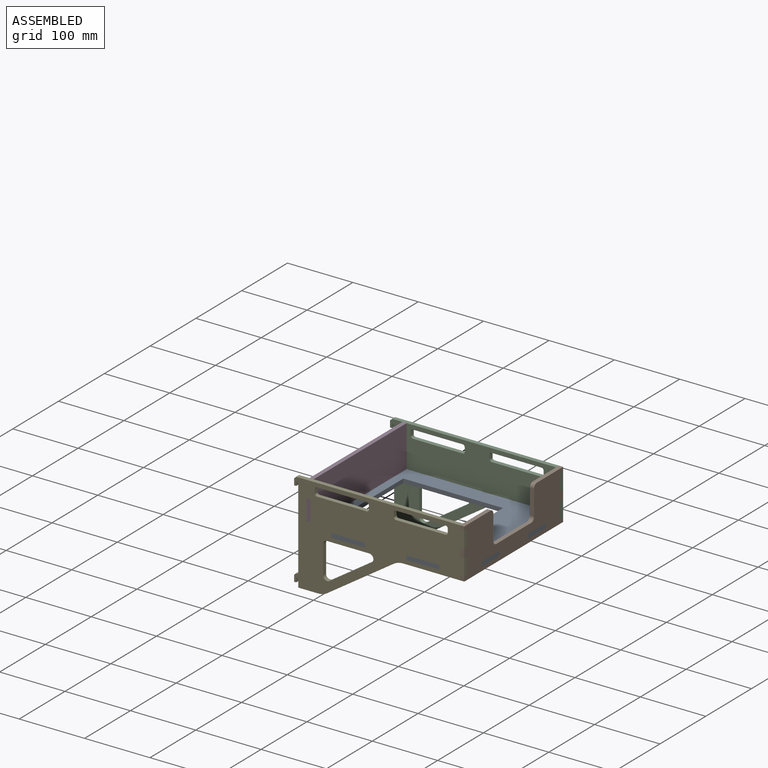
[diagram: assembled view]
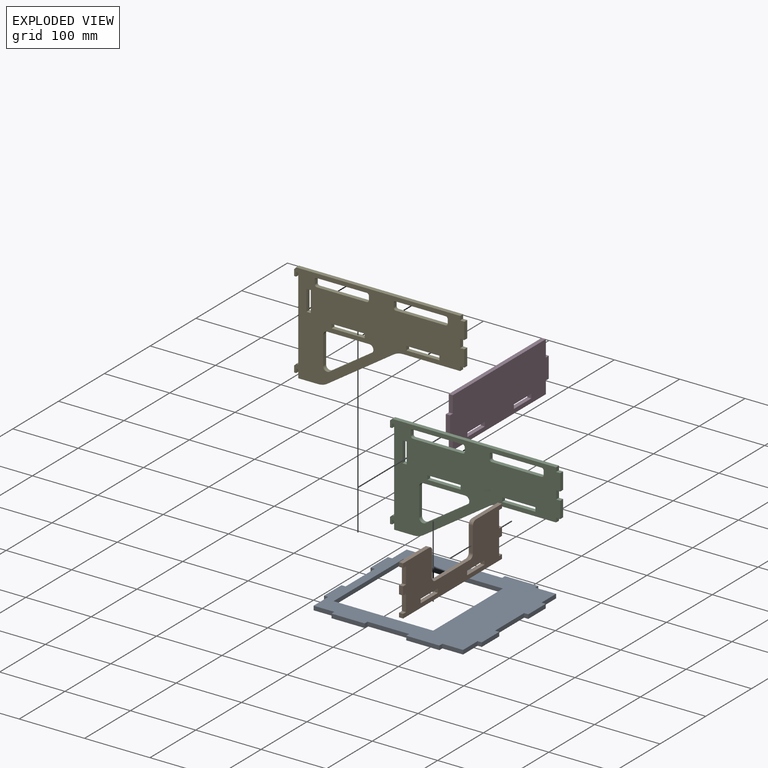
[diagram: exploded view]
GUIDED TOUR — MATED ASSEMBLY (Onshape document b302a320dc80bb2ea36d45a2, AutoMate assembly b302a320dc80bb2ea36d45a2_dad749098878d30b90945c5e_bf404f5cf62ca53e64bdb5ba_default)

This assembly has 5 components, labeled P0..P4 below (a component is one placed occurrence of a part; the same part can appear more than once), held together by 12 mates. A mate is a constraint between two components; its type names the relative motion it leaves free:
  FASTENED — locks the two components together rigidly (no relative motion),
  PARALLEL — keeps the two listed directions parallel,
  PLANAR — leaves sliding in the plane through the listed point (normal = the listed direction) and rotation about that normal free.
Axis/direction vectors are unit vectors and 'through' points are millimeter coordinates, both in the assembly's world frame.

MATES
  1. PARALLEL "Parallel 3": P4 <-> P1, direction (0.000, 0.000, 1.000) through (27.46, -137.47, 80.93) mm
  2. PLANAR "Planar 4": P4 <-> P0, direction (0.000, 0.000, -1.000) through (95.72, -137.47, 17.43) mm
  3. PLANAR "Planar 2": P0 <-> P1, direction (0.000, 0.000, 1.000) through (89.37, -32.70, 17.43) mm
  4. FASTENED "Fastened 3": P3 <-> P0, direction (0.000, -1.000, 0.000) through (-82.08, -64.45, 17.43) mm
  5. PARALLEL "Parallel 2": P1 <-> P4, direction (0.000, 0.000, 1.000) through (156.04, -112.07, 80.93) mm
  6. PARALLEL "Parallel 4": P1 <-> P4, direction (1.000, 0.000, 0.000) through (159.22, -134.30, 61.88) mm
  7. PARALLEL "Parallel 1": P4 <-> P1, direction (1.000, 0.000, 0.000) through (152.87, -137.47, 77.75) mm
  8. FASTENED "Fastened 2": P0 <-> P2, direction (1.000, 0.000, 0.000) through (70.32, 75.25, 17.43) mm
  9. FASTENED "Fastened 1": P1 <-> P0, direction (0.000, -1.000, 0.000) through (159.22, -64.45, 17.43) mm
  10. PLANAR "Planar 5": P0 <-> P4, direction (1.000, 0.000, 0.000) through (121.12, -137.47, 14.25) mm
  11. PLANAR "Planar 3": P4 <-> P0, direction (0.000, 1.000, 0.000) through (13.54, -134.30, 24.76) mm
  12. PLANAR "Planar 1": P0 <-> P1, direction (1.000, 0.000, 0.000) through (159.22, -83.50, 14.25) mm

ASSEMBLY ORDER
  1. P2 — the base component [order verified]
  2. P1 [order verified]
  3. P4 [order verified]
  4. P3 [order verified]
  5. P0 [order verified]
Order-tag legend:
  [order verified] — this step's position reverses a verified removal order: the component was checked to insert without passing through the ones already placed.

Of the 5 components, 3 carry the full construction recipe — the FeatureScript program that regenerates the part's solid from scratch; the rest are supplied as boundary geometry only.
Each toured component is shown spotlighted twice — in the assembled view, then in the exploded view, where a leader line traces a displaced component back to its assembled socket (saturated green if recipe-attached, orange if geometry-only; every other component desaturated gray) — followed by its recipe or geometry summary and the mates that hold it.
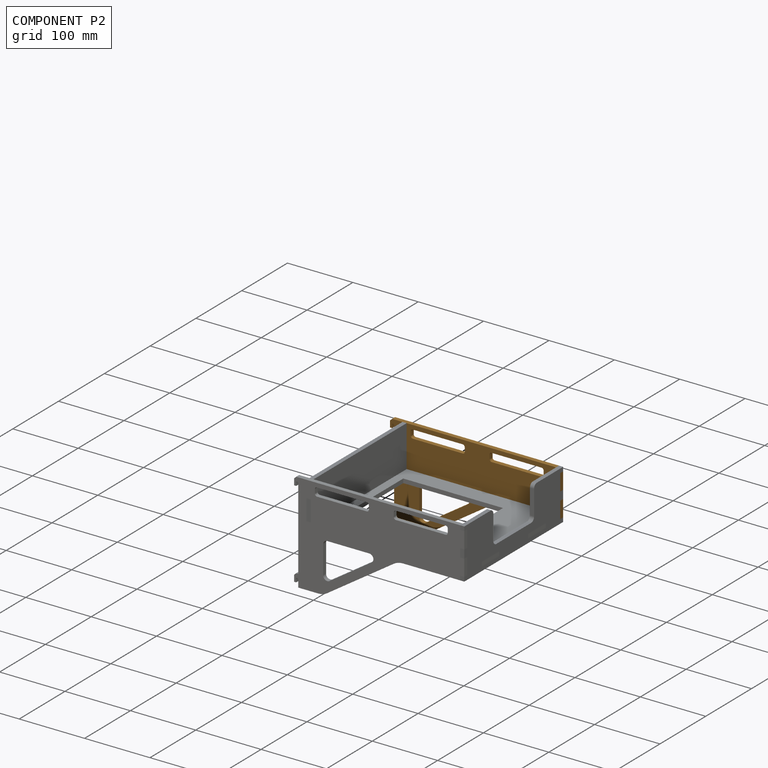
[diagram: component P2 — assembled]
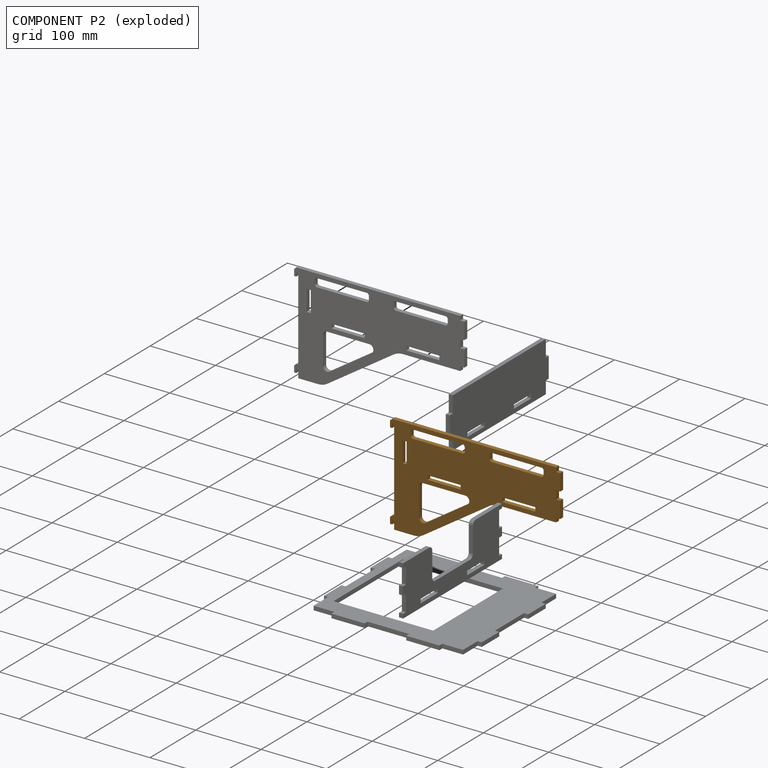
[diagram: component P2 — exploded]
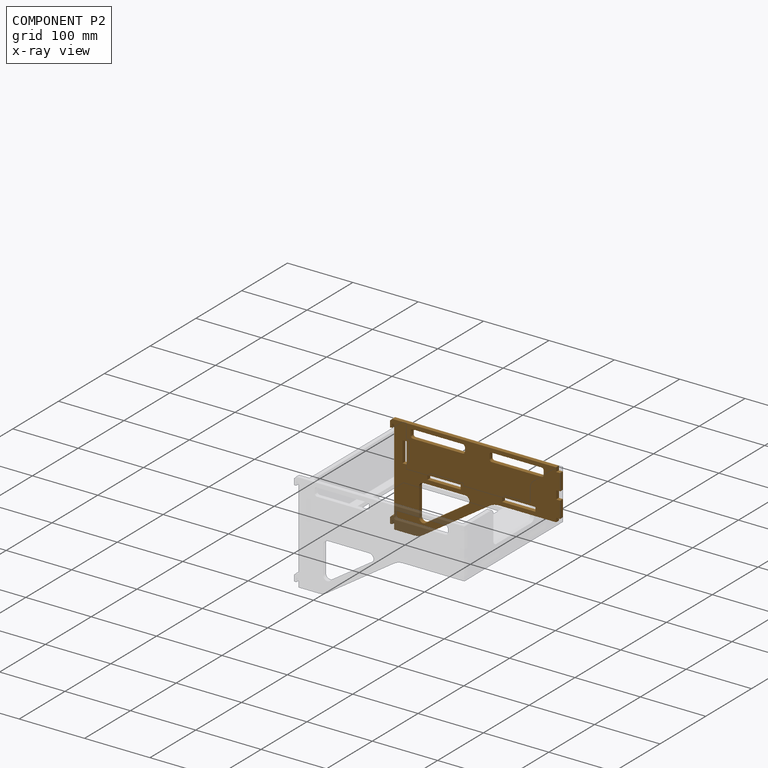
[diagram: component P2 — x-ray view]
COMPONENT P2 — geometry summary (no construction recipe available for this part):
  bounding box: 260.4 x 152.4 x 6.4 mm
  B-rep topology: 1 solid, 64 faces, 372 edges
  volume: 133195 mm^3 (53% of its bounding box)
  symmetry: mirror-symmetric across its y mid-plane
Held by: FASTENED mate "Fastened 2" to P0.
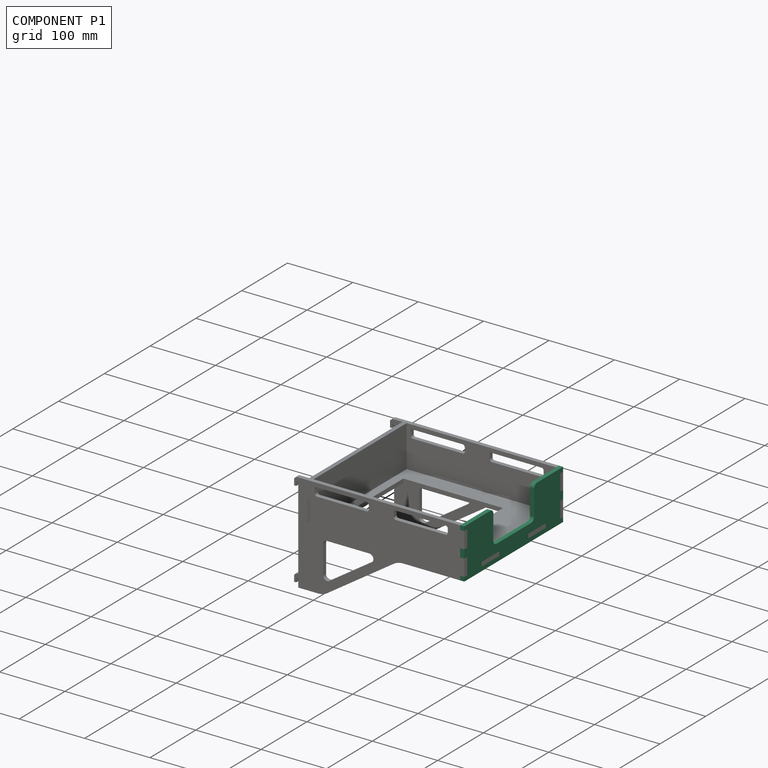
[diagram: component P1 — assembled]
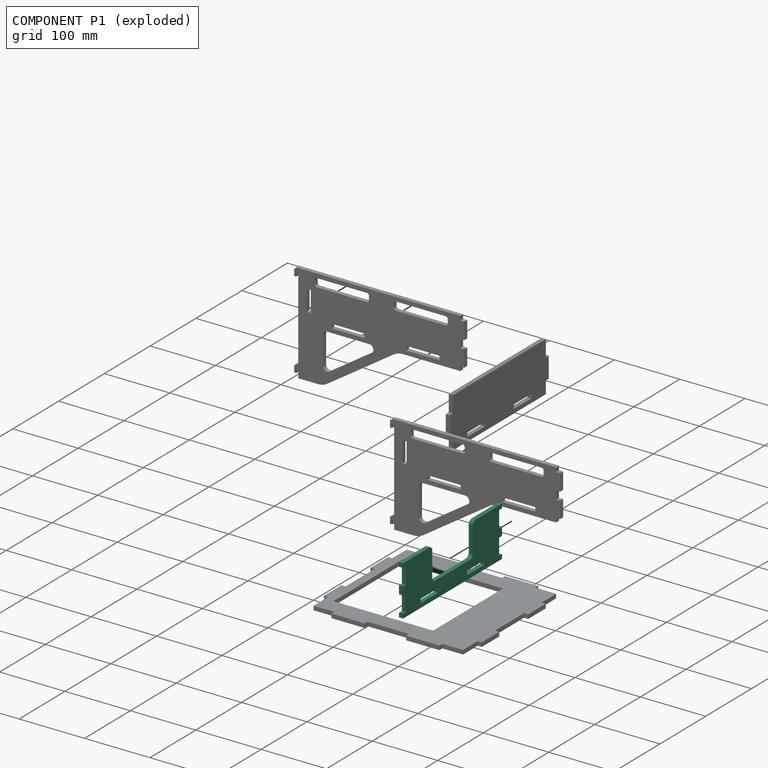
[diagram: component P1 — exploded]
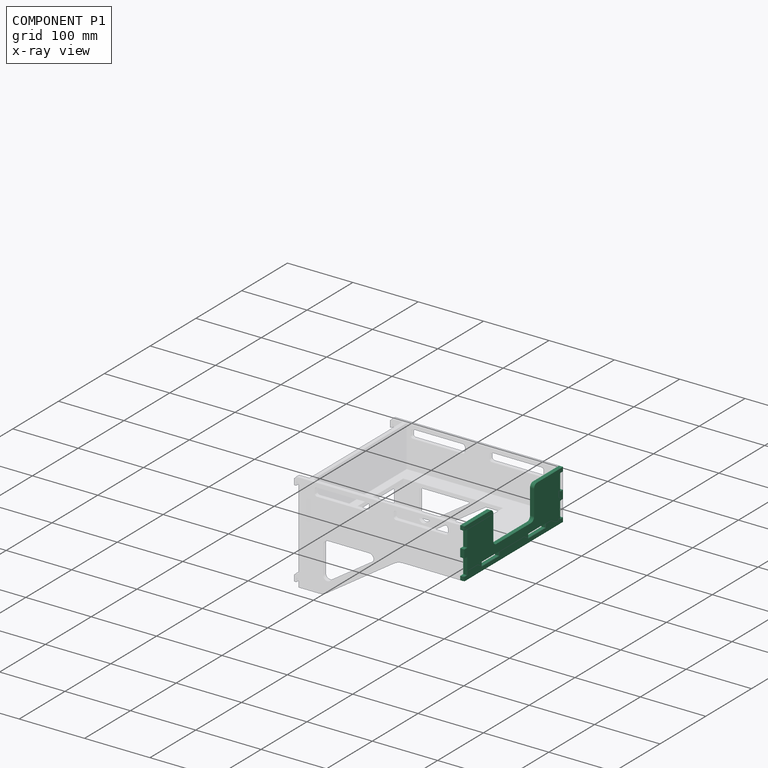
[diagram: component P1 — x-ray view]
COMPONENT P1 — recipe-attached (CADFS 00296642, mesh-verified: the recipe's output STEP matches this component's geometry to below the mesh-comparison resolution (tessellation chordal tolerance ~0.344 mm)).
Held by: PARALLEL mate "Parallel 3" to P4; PLANAR mate "Planar 2" to P0; PARALLEL mate "Parallel 2" to P4; PARALLEL mate "Parallel 4" to P4; PARALLEL mate "Parallel 1" to P4; FASTENED mate "Fastened 1" to P0; PLANAR mate "Planar 1" to P0.
Construction recipe (FeatureScript — the CAD program that rebuilds this solid; sketch coordinates are in the units given by the * unit suffixes, e.g. mm):

FeatureScript 1511;
import(path : "onshape/std/geometry.fs", version : "1511.0");
import(path : "onshape/std/common.fs", version : "1511.0");
const mm = millimeter;
const VERTEX = EntityType.VERTEX;
const EDGE = EntityType.EDGE;
const FACE = EntityType.FACE;
const BODY = EntityType.BODY;
function v(x, y){return vector(x, y);}
function OD(order){return orderDisambiguation(order);}
function OSD(set){return originalSetDisambiguation(set);}
function TD(topology){return topologyDisambiguation(topology);}
function TDD(query){return trueDependencyDisambiguation(query);}
function sQuery(a, b, c) {return sketchEntityQuery(a, b, c);}

annotation { "Feature Type Name" : "Feature", "Feature Type Description" : "" }
export const myFeature = defineFeature(function(context is Context, id is Id, definition is map)
    precondition{}
    {
        {
            var Q0;
            Q0=qCreatedBy(makeId("Right.planeOp"),FACE);
            var sketch = newSketch(context, id + "F0", { "sketchPlane" : qUnion([Q0])});
            skLineSegment(sketch, "E0.bottom", {"start": v(-107.95, 38.1) * mm, "end": v(-44.45, 38.1) * mm});
            skLineSegment(sketch, "E0.top", {"start": v(-107.95, -38.1) * mm, "end": v(107.95, -38.1) * mm});
            skLineSegment(sketch, "E0.left", {"start": v(-107.95, 38.1) * mm, "end": v(-107.95, 31.75) * mm});
            skLineSegment(sketch, "E0.right", {"start": v(107.95, 38.1) * mm, "end": v(107.95, 31.75) * mm});
            skPoint(sketch, "E0.middle", {"position": v(0, 0) * mm});
            skLineSegment(sketch, "E1", {"start": v(-107.95, -28.58) * mm, "end": v(107.95, -28.58) * mm, "construction": true});
            skLineSegment(sketch, "E2.bottom", {"start": v(-31.75, -25.4) * mm, "end": v(-69.85, -25.4) * mm});
            skLineSegment(sketch, "E2.top", {"start": v(-31.75, -31.75) * mm, "end": v(-69.85, -31.75) * mm});
            skLineSegment(sketch, "E2.left", {"start": v(-31.75, -25.4) * mm, "end": v(-31.75, -31.75) * mm});
            skLineSegment(sketch, "E2.right", {"start": v(-69.85, -25.4) * mm, "end": v(-69.85, -31.75) * mm});
            skPoint(sketch, "E2.middle", {"position": v(-50.8, -28.58) * mm});
            skLineSegment(sketch, "E3.MirrorCS", {"start": v(31.75, -31.75) * mm, "end": v(69.85, -31.75) * mm});
            skLineSegment(sketch, "E4.MirrorCS", {"start": v(31.75, -25.4) * mm, "end": v(31.75, -31.75) * mm});
            skLineSegment(sketch, "E5.MirrorCS", {"start": v(69.85, -25.4) * mm, "end": v(69.85, -31.75) * mm});
            skLineSegment(sketch, "E6.MirrorCS", {"start": v(31.75, -25.4) * mm, "end": v(69.85, -25.4) * mm});
            skPoint(sketch, "E7.MirrorP", {"position": v(50.8, -28.58) * mm});
            skLineSegment(sketch, "E8.top", {"start": v(-44.45, -12.7) * mm, "end": v(44.45, -12.7) * mm});
            skLineSegment(sketch, "E8.left", {"start": v(-44.45, 38.1) * mm, "end": v(-44.45, -12.7) * mm});
            skLineSegment(sketch, "E8.right", {"start": v(44.45, 38.1) * mm, "end": v(44.45, -12.7) * mm});
            skLineSegment(sketch, "E9.trimOffspring", {"start": v(44.45, 38.1) * mm, "end": v(107.95, 38.1) * mm});
            skPoint(sketch, "E10", {"position": v(0, -12.7) * mm});
            skLineSegment(sketch, "E11.bottom", {"start": v(-107.95, 31.75) * mm, "end": v(-101.6, 31.75) * mm});
            skLineSegment(sketch, "E11.top", {"start": v(-107.95, 6.35) * mm, "end": v(-101.6, 6.35) * mm});
            skLineSegment(sketch, "E11.right", {"start": v(-101.6, 31.75) * mm, "end": v(-101.6, 6.35) * mm});
            skLineSegment(sketch, "E12.bottom", {"start": v(-107.95, -6.35) * mm, "end": v(-101.6, -6.35) * mm});
            skLineSegment(sketch, "E12.top", {"start": v(-107.95, -31.75) * mm, "end": v(-101.6, -31.75) * mm});
            skLineSegment(sketch, "E12.right", {"start": v(-101.6, -6.35) * mm, "end": v(-101.6, -31.75) * mm});
            skPoint(sketch, "E13", {"position": v(-107.95, 0) * mm});
            skPoint(sketch, "E14", {"position": v(-101.6, 19.05) * mm});
            skPoint(sketch, "E15", {"position": v(-101.6, -19.05) * mm});
            skLineSegment(sketch, "E16.MirrorCS", {"start": v(107.95, 31.75) * mm, "end": v(101.6, 31.75) * mm});
            skLineSegment(sketch, "E17.MirrorCS", {"start": v(107.95, -6.35) * mm, "end": v(101.6, -6.35) * mm});
            skLineSegment(sketch, "E18.MirrorCS", {"start": v(107.95, -31.75) * mm, "end": v(101.6, -31.75) * mm});
            skLineSegment(sketch, "E19.MirrorCS", {"start": v(107.95, 6.35) * mm, "end": v(101.6, 6.35) * mm});
            skPoint(sketch, "E20.MirrorP", {"position": v(107.95, 0) * mm});
            skPoint(sketch, "E21.MirrorP", {"position": v(101.6, -19.05) * mm});
            skLineSegment(sketch, "E22.MirrorCS", {"start": v(101.6, 31.75) * mm, "end": v(101.6, 6.35) * mm});
            skPoint(sketch, "E23.MirrorP", {"position": v(101.6, 19.05) * mm});
            skLineSegment(sketch, "E24.MirrorCS", {"start": v(101.6, -6.35) * mm, "end": v(101.6, -31.75) * mm});
            skLineSegment(sketch, "E25.trimOffspring", {"start": v(-107.95, 6.35) * mm, "end": v(-107.95, -6.35) * mm});
            skLineSegment(sketch, "E26.trimOffspring", {"start": v(-107.95, -31.75) * mm, "end": v(-107.95, -38.1) * mm});
            skLineSegment(sketch, "E27.trimOffspring", {"start": v(107.95, -31.75) * mm, "end": v(107.95, -38.1) * mm});
            skLineSegment(sketch, "E28.trimOffspring", {"start": v(107.95, 6.35) * mm, "end": v(107.95, -6.35) * mm});
            skSolve(sketch);
        }
        {
            var Q0;
            Q0 = qSketchRegion(id + "F0", true);
            extrude(context, id + "F1", {"entities" : qUnion([Q0]), "depth" : 6.35 * mm});
        }
        {
            var Q0;
            Q0=makeQuery(id+"F1.opExtrude","SWEPT_EDGE",EDGE,{"disambiguationData":[OSD([sQuery(id+"F0.wireOp",EDGE,"E0.bottom"),sQuery(id+"F0.wireOp",EDGE,"E8.left")])]});
            var Q1;
            Q1=makeQuery(id+"F1.opExtrude","SWEPT_EDGE",EDGE,{"disambiguationData":[OSD([sQuery(id+"F0.wireOp",EDGE,"E8.top"),sQuery(id+"F0.wireOp",EDGE,"E8.left")])]});
            var Q2;
            Q2=makeQuery(id+"F1.opExtrude","SWEPT_EDGE",EDGE,{"disambiguationData":[OSD([sQuery(id+"F0.wireOp",EDGE,"E8.right"),sQuery(id+"F0.wireOp",EDGE,"E9.trimOffspring")])]});
            var Q3;
            Q3=makeQuery(id+"F1.opExtrude","SWEPT_EDGE",EDGE,{"disambiguationData":[OSD([sQuery(id+"F0.wireOp",EDGE,"E8.top"),sQuery(id+"F0.wireOp",EDGE,"E8.right")])]});
            fillet(context, id + "F2", {"entities" : qUnion([Q0, Q1, Q2, Q3]), "radius" : 6.35 * mm, "tangentPropagation" : true, "allowEdgeOverflow" : false});
        }
    });
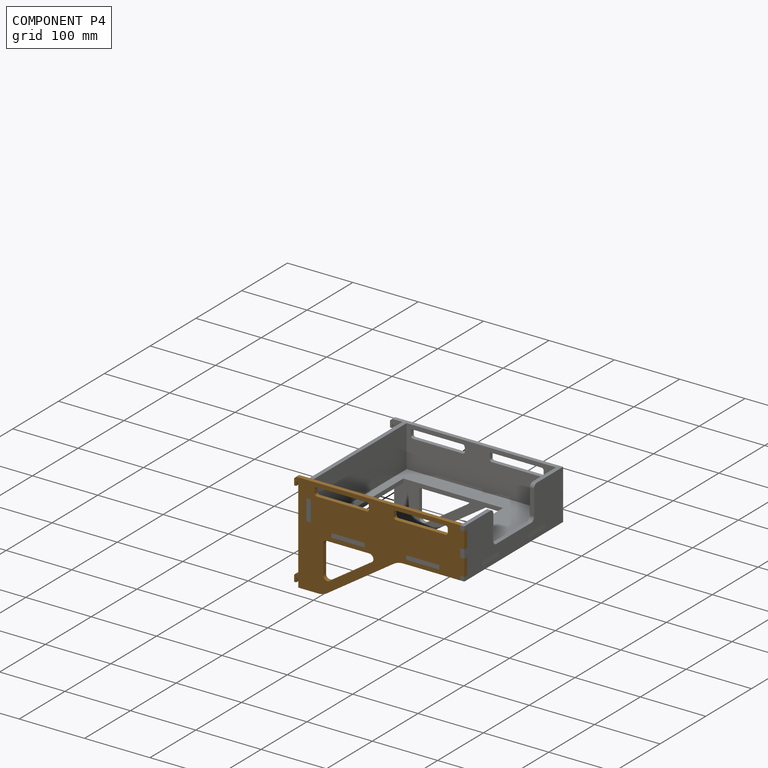
[diagram: component P4 — assembled]
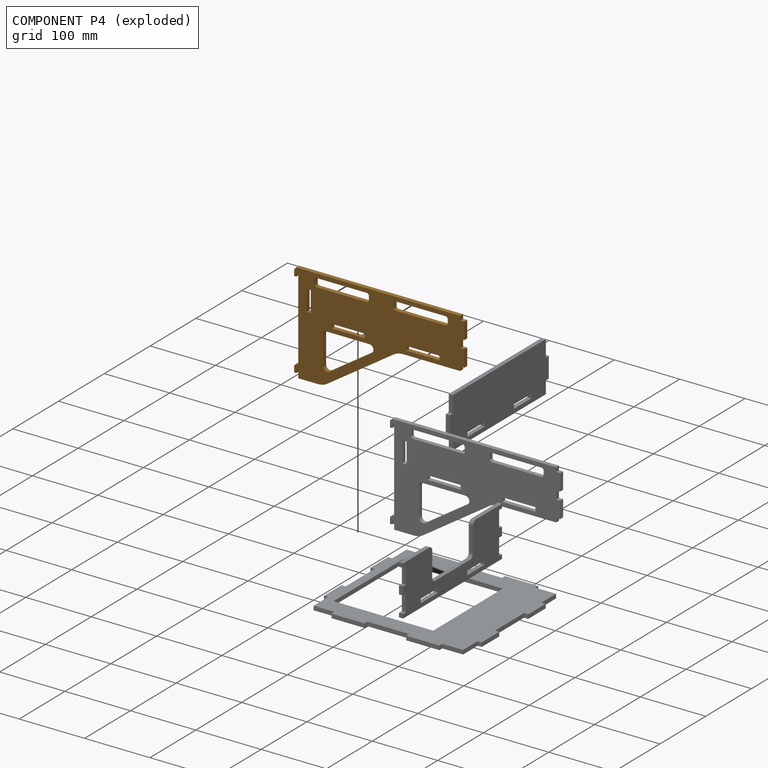
[diagram: component P4 — exploded]
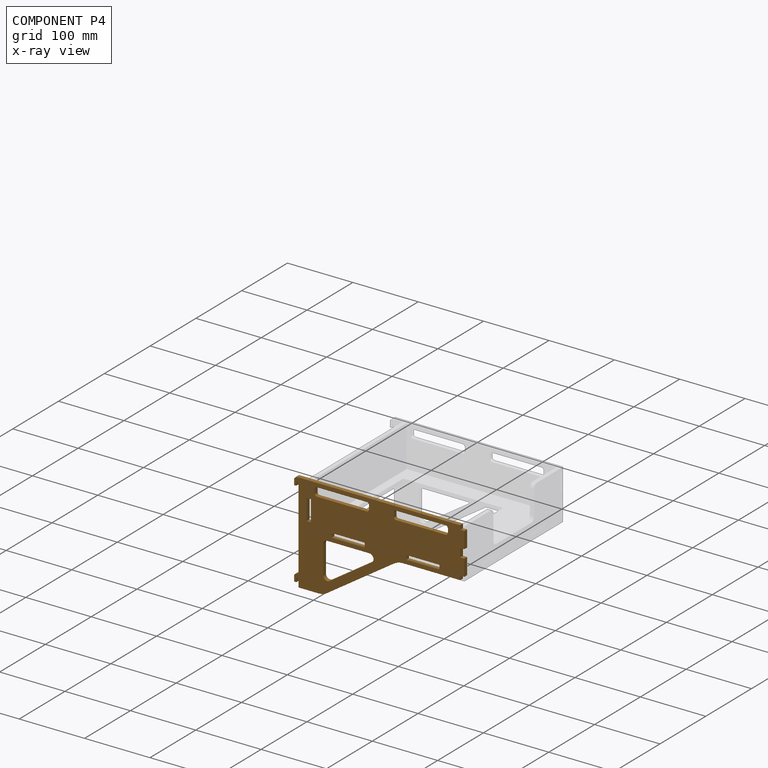
[diagram: component P4 — x-ray view]
COMPONENT P4 — geometry summary (no construction recipe available for this part):
  bounding box: 260.4 x 152.4 x 6.4 mm
  B-rep topology: 1 solid, 64 faces, 372 edges
  volume: 133195 mm^3 (53% of its bounding box)
  symmetry: mirror-symmetric across its y mid-plane
Held by: PARALLEL mate "Parallel 3" to P1; PLANAR mate "Planar 4" to P0; PARALLEL mate "Parallel 2" to P1; PARALLEL mate "Parallel 4" to P1; PARALLEL mate "Parallel 1" to P1; PLANAR mate "Planar 5" to P0; PLANAR mate "Planar 3" to P0.
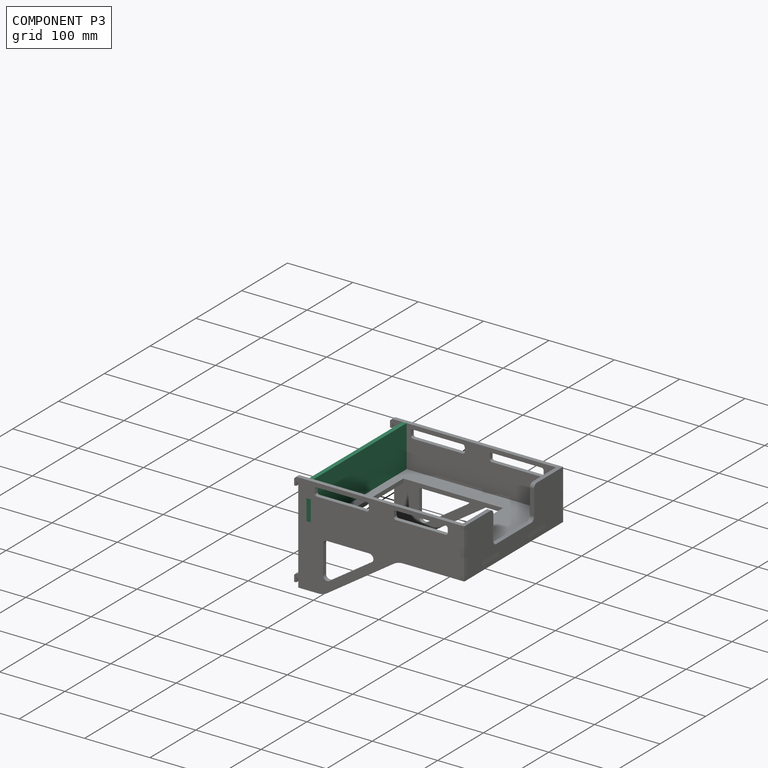
[diagram: component P3 — assembled]
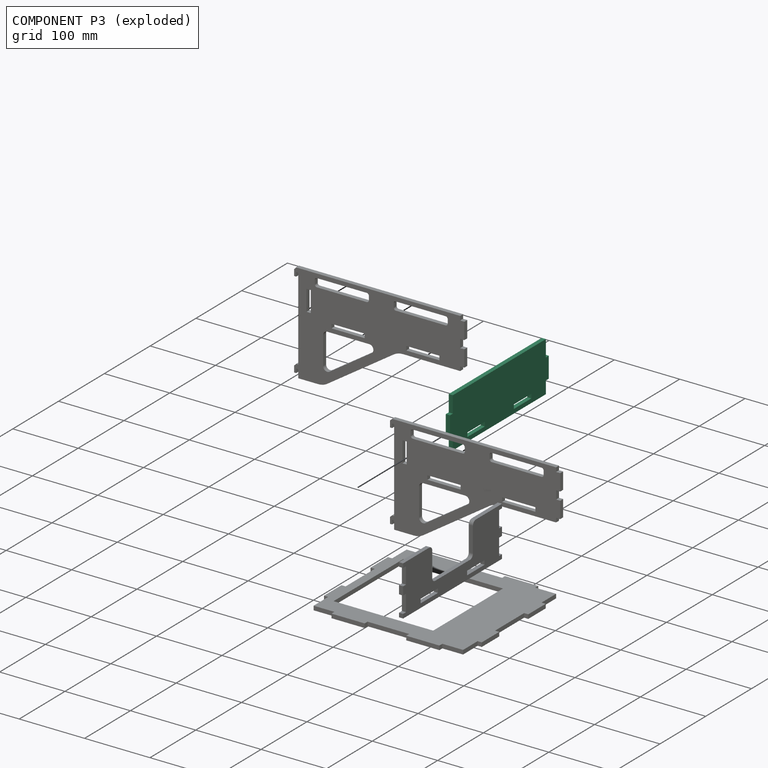
[diagram: component P3 — exploded]
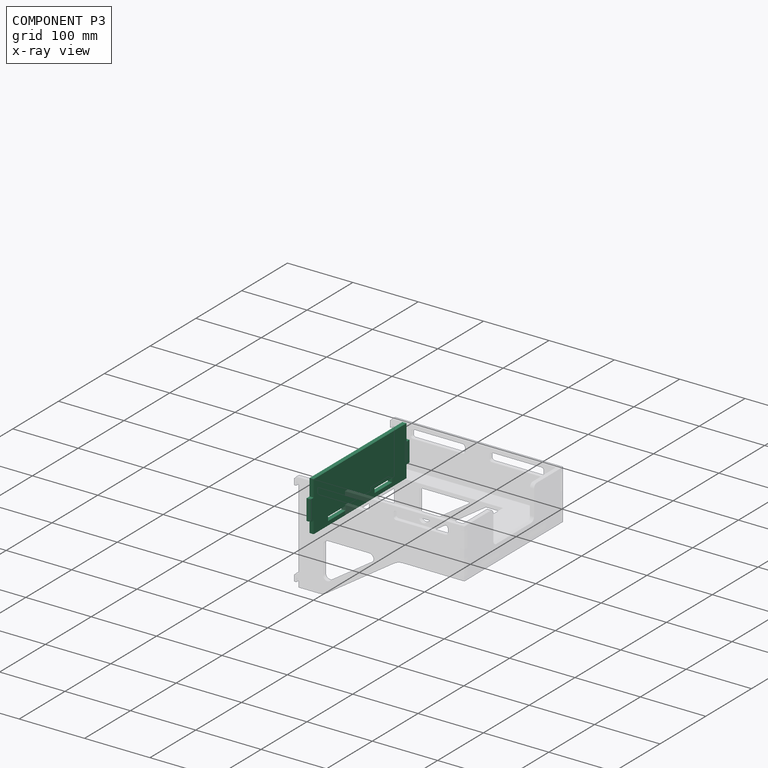
[diagram: component P3 — x-ray view]
COMPONENT P3 — recipe-attached (CADFS 00296643, mesh-verified: the recipe's output STEP matches this component's geometry to below the mesh-comparison resolution (tessellation chordal tolerance ~0.344 mm)).
Held by: FASTENED mate "Fastened 3" to P0.
Construction recipe (FeatureScript — the CAD program that rebuilds this solid; sketch coordinates are in the units given by the * unit suffixes, e.g. mm):

FeatureScript 1511;
import(path : "onshape/std/geometry.fs", version : "1511.0");
import(path : "onshape/std/common.fs", version : "1511.0");
const mm = millimeter;
const VERTEX = EntityType.VERTEX;
const EDGE = EntityType.EDGE;
const FACE = EntityType.FACE;
const BODY = EntityType.BODY;
function v(x, y){return vector(x, y);}
function OD(order){return orderDisambiguation(order);}
function OSD(set){return originalSetDisambiguation(set);}
function TD(topology){return topologyDisambiguation(topology);}
function TDD(query){return trueDependencyDisambiguation(query);}
function sQuery(a, b, c) {return sketchEntityQuery(a, b, c);}

annotation { "Feature Type Name" : "Feature", "Feature Type Description" : "" }
export const myFeature = defineFeature(function(context is Context, id is Id, definition is map)
    precondition{}
    {
        {
            var Q0;
            Q0=qCreatedBy(makeId("Right.planeOp"),FACE);
            var sketch = newSketch(context, id + "F0", { "sketchPlane" : qUnion([Q0])});
            skLineSegment(sketch, "E0.bottom", {"start": v(-101.6, 38.1) * mm, "end": v(101.6, 38.1) * mm});
            skLineSegment(sketch, "E0.top", {"start": v(-101.6, -38.1) * mm, "end": v(101.6, -38.1) * mm});
            skLineSegment(sketch, "E0.left", {"start": v(-101.6, 38.1) * mm, "end": v(-101.6, 12.7) * mm});
            skLineSegment(sketch, "E0.right", {"start": v(101.6, 38.1) * mm, "end": v(101.6, 12.7) * mm});
            skPoint(sketch, "E0.middle", {"position": v(0, 0) * mm});
            skLineSegment(sketch, "E1", {"start": v(-101.6, -28.57) * mm, "end": v(101.6, -28.58) * mm, "construction": true});
            skLineSegment(sketch, "E2.bottom", {"start": v(-101.6, 12.7) * mm, "end": v(-107.95, 12.7) * mm});
            skLineSegment(sketch, "E2.top", {"start": v(-101.6, -19.05) * mm, "end": v(-107.95, -19.05) * mm});
            skLineSegment(sketch, "E2.right", {"start": v(-107.95, 12.7) * mm, "end": v(-107.95, -19.05) * mm});
            skPoint(sketch, "E3", {"position": v(-107.95, -3.17) * mm});
            skLineSegment(sketch, "E4.trimOffspring", {"start": v(-101.6, -19.05) * mm, "end": v(-101.6, -38.1) * mm});
            skPoint(sketch, "E5.MirrorP", {"position": v(107.95, -3.17) * mm});
            skLineSegment(sketch, "E6.MirrorCS", {"start": v(101.6, 12.7) * mm, "end": v(107.95, 12.7) * mm});
            skLineSegment(sketch, "E7.MirrorCS", {"start": v(101.6, -19.05) * mm, "end": v(107.95, -19.05) * mm});
            skLineSegment(sketch, "E8.MirrorCS", {"start": v(107.95, 12.7) * mm, "end": v(107.95, -19.05) * mm});
            skLineSegment(sketch, "E9.trimOffspring", {"start": v(101.6, -19.05) * mm, "end": v(101.6, -38.1) * mm});
            skLineSegment(sketch, "E10.bottom", {"start": v(-31.75, -25.4) * mm, "end": v(-69.85, -25.4) * mm});
            skLineSegment(sketch, "E10.top", {"start": v(-31.75, -31.75) * mm, "end": v(-69.85, -31.75) * mm});
            skLineSegment(sketch, "E10.left", {"start": v(-31.75, -25.4) * mm, "end": v(-31.75, -31.75) * mm});
            skLineSegment(sketch, "E10.right", {"start": v(-69.85, -25.4) * mm, "end": v(-69.85, -31.75) * mm});
            skPoint(sketch, "E10.middle", {"position": v(-50.8, -28.57) * mm});
            skLineSegment(sketch, "E11.MirrorCS", {"start": v(69.85, -25.4) * mm, "end": v(69.85, -31.75) * mm});
            skLineSegment(sketch, "E12.MirrorCS", {"start": v(31.75, -25.4) * mm, "end": v(31.75, -31.75) * mm});
            skLineSegment(sketch, "E13.MirrorCS", {"start": v(31.75, -31.75) * mm, "end": v(69.85, -31.75) * mm});
            skLineSegment(sketch, "E14.MirrorCS", {"start": v(31.75, -25.4) * mm, "end": v(69.85, -25.4) * mm});
            skPoint(sketch, "E15.MirrorP", {"position": v(50.8, -28.57) * mm});
            skSolve(sketch);
        }
        {
            var Q0;
            Q0 = qSketchRegion(id + "F0", true);
            extrude(context, id + "F1", {"entities" : qUnion([Q0]), "depth" : 6.35 * mm});
        }
    });
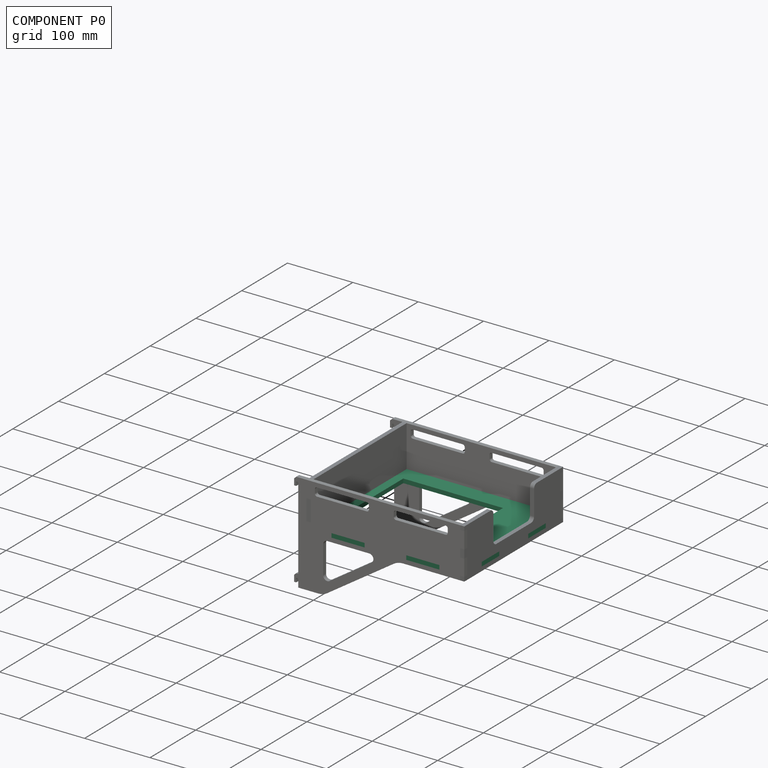
[diagram: component P0 — assembled]
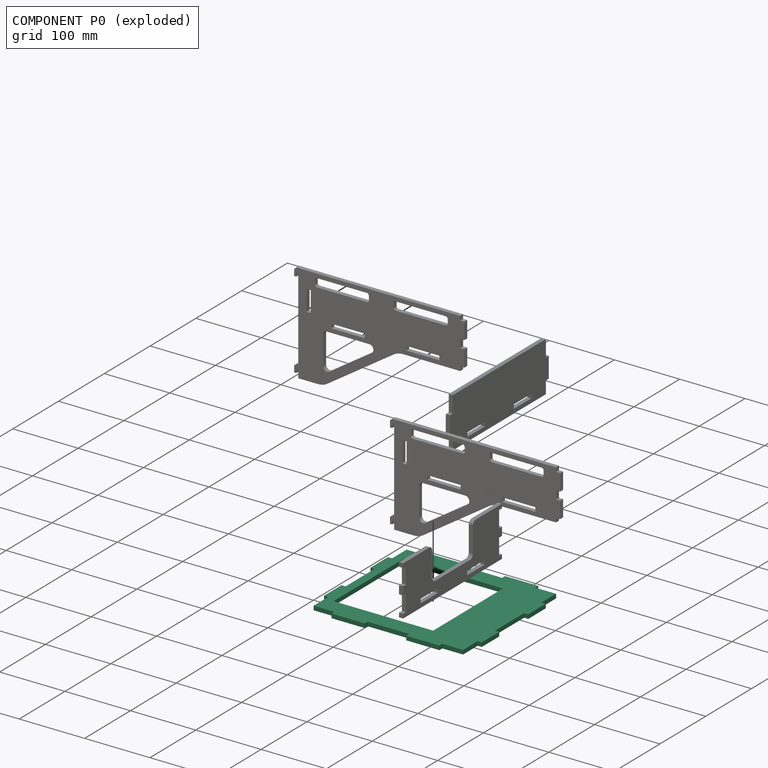
[diagram: component P0 — exploded]
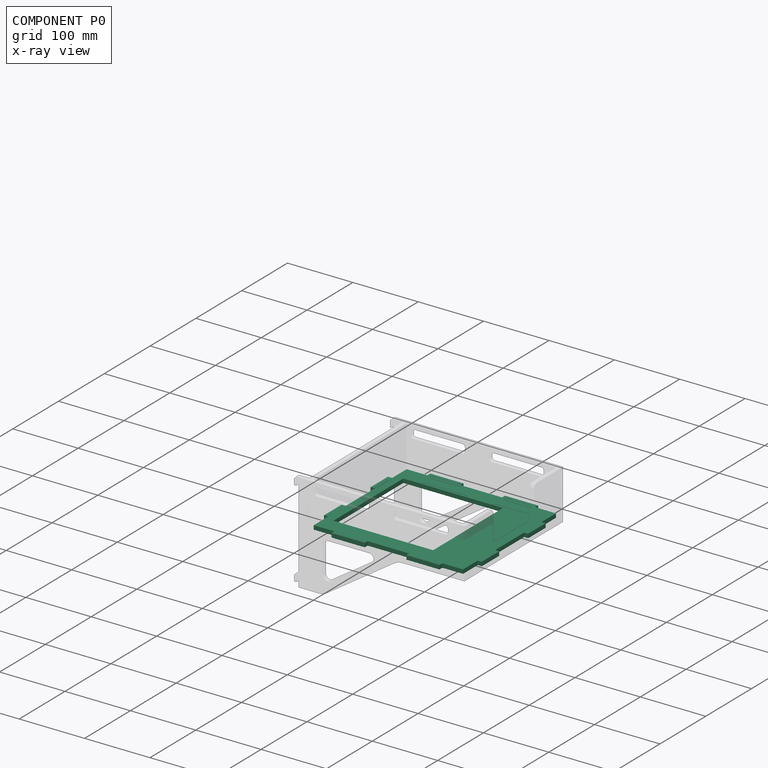
[diagram: component P0 — x-ray view]
COMPONENT P0 — recipe-attached (CADFS 00296640, mesh-verified: the recipe's output STEP matches this component's geometry to below the mesh-comparison resolution (tessellation chordal tolerance ~0.486 mm)).
Held by: PLANAR mate "Planar 4" to P4; PLANAR mate "Planar 2" to P1; FASTENED mate "Fastened 3" to P3; FASTENED mate "Fastened 2" to P2; FASTENED mate "Fastened 1" to P1; PLANAR mate "Planar 5" to P4; PLANAR mate "Planar 3" to P4; PLANAR mate "Planar 1" to P1.
Construction recipe (FeatureScript — the CAD program that rebuilds this solid; sketch coordinates are in the units given by the * unit suffixes, e.g. mm):

FeatureScript 1511;
import(path : "onshape/std/geometry.fs", version : "1511.0");
import(path : "onshape/std/common.fs", version : "1511.0");
const mm = millimeter;
const VERTEX = EntityType.VERTEX;
const EDGE = EntityType.EDGE;
const FACE = EntityType.FACE;
const BODY = EntityType.BODY;
function v(x, y){return vector(x, y);}
function OD(order){return orderDisambiguation(order);}
function OSD(set){return originalSetDisambiguation(set);}
function TD(topology){return topologyDisambiguation(topology);}
function TDD(query){return trueDependencyDisambiguation(query);}
function sQuery(a, b, c) {return sketchEntityQuery(a, b, c);}

annotation { "Feature Type Name" : "Feature", "Feature Type Description" : "" }
export const myFeature = defineFeature(function(context is Context, id is Id, definition is map)
    precondition{}
    {
        {
            var Q0;
            Q0=qCreatedBy(makeId("Top.planeOp"),FACE);
            var sketch = newSketch(context, id + "F0", { "sketchPlane" : qUnion([Q0])});
            skLineSegment(sketch, "E0.bottom", {"start": v(76.2, 76.2) * mm, "end": v(-76.2, 76.2) * mm});
            skLineSegment(sketch, "E0.top", {"start": v(76.2, -76.2) * mm, "end": v(-76.2, -76.2) * mm});
            skLineSegment(sketch, "E0.left", {"start": v(76.2, 76.2) * mm, "end": v(76.2, -76.2) * mm});
            skLineSegment(sketch, "E0.right", {"start": v(-76.2, 76.2) * mm, "end": v(-76.2, -76.2) * mm});
            skPoint(sketch, "E0.middle", {"position": v(0, 0) * mm});
            skLineSegment(sketch, "E1.bottom", {"start": v(-88.9, 101.6) * mm, "end": v(139.7, 101.6) * mm});
            skLineSegment(sketch, "E1.top", {"start": v(-88.9, -101.6) * mm, "end": v(139.7, -101.6) * mm});
            skLineSegment(sketch, "E1.left", {"start": v(-88.9, 101.6) * mm, "end": v(-88.9, -101.6) * mm});
            skLineSegment(sketch, "E1.right", {"start": v(139.7, 101.6) * mm, "end": v(139.7, -101.6) * mm});
            skPoint(sketch, "E1.middle", {"position": v(25.4, 0) * mm});
            skSolve(sketch);
        }
        {
            var Q0;
            Q0 = qSketchRegion(id + "F0", true);
            extrude(context, id + "F1", {"entities" : qUnion([Q0]), "depth" : 6.35 * mm});
        }
        {
            var Q0;
            Q0=makeQuery(id+"F1.opExtrude","CAP_FACE",FACE,{"disambiguationData":[OSD([sQuery(id+"F0.wireOp",EDGE,"E0.bottom"),sQuery(id+"F0.wireOp",EDGE,"E0.top"),sQuery(id+"F0.wireOp",EDGE,"E0.left"),sQuery(id+"F0.wireOp",EDGE,"E0.right"),sQuery(id+"F0.wireOp",EDGE,"E1.bottom"),sQuery(id+"F0.wireOp",EDGE,"E1.top"),sQuery(id+"F0.wireOp",EDGE,"E1.left"),sQuery(id+"F0.wireOp",EDGE,"E1.right")])],"isStart":false});
            var sketch = newSketch(context, id + "F2", { "sketchPlane" : qUnion([Q0])});
            skLineSegment(sketch, "E2", {"start": v(25.4, 101.6) * mm, "end": v(25.4, -101.6) * mm, "construction": true});
            skLineSegment(sketch, "E3", {"start": v(-88.9, 0) * mm, "end": v(139.7, 0) * mm, "construction": true});
            skLineSegment(sketch, "E4.bottom", {"start": v(-57.15, 101.6) * mm, "end": v(-6.35, 101.6) * mm});
            skLineSegment(sketch, "E4.top", {"start": v(-57.15, 107.95) * mm, "end": v(-6.35, 107.95) * mm});
            skLineSegment(sketch, "E4.left", {"start": v(-57.15, 101.6) * mm, "end": v(-57.15, 107.95) * mm});
            skLineSegment(sketch, "E4.right", {"start": v(-6.35, 101.6) * mm, "end": v(-6.35, 107.95) * mm});
            skLineSegment(sketch, "E5.bottom", {"start": v(57.15, 101.6) * mm, "end": v(107.95, 101.6) * mm});
            skLineSegment(sketch, "E5.top", {"start": v(57.15, 107.95) * mm, "end": v(107.95, 107.95) * mm});
            skLineSegment(sketch, "E5.left", {"start": v(57.15, 101.6) * mm, "end": v(57.15, 107.95) * mm});
            skLineSegment(sketch, "E5.right", {"start": v(107.95, 101.6) * mm, "end": v(107.95, 107.95) * mm});
            skLineSegment(sketch, "E6.bottom", {"start": v(139.7, 69.85) * mm, "end": v(146.05, 69.85) * mm});
            skLineSegment(sketch, "E6.top", {"start": v(139.7, 31.75) * mm, "end": v(146.05, 31.75) * mm});
            skLineSegment(sketch, "E6.left", {"start": v(139.7, 69.85) * mm, "end": v(139.7, 31.75) * mm});
            skLineSegment(sketch, "E6.right", {"start": v(146.05, 69.85) * mm, "end": v(146.05, 31.75) * mm});
            skLineSegment(sketch, "E7.bottom", {"start": v(139.7, -31.75) * mm, "end": v(146.05, -31.75) * mm});
            skLineSegment(sketch, "E7.top", {"start": v(139.7, -69.85) * mm, "end": v(146.05, -69.85) * mm});
            skLineSegment(sketch, "E7.left", {"start": v(139.7, -31.75) * mm, "end": v(139.7, -69.85) * mm});
            skLineSegment(sketch, "E7.right", {"start": v(146.05, -31.75) * mm, "end": v(146.05, -69.85) * mm});
            skLineSegment(sketch, "E8", {"start": v(-31.75, 107.95) * mm, "end": v(-31.75, 0) * mm, "construction": true});
            skLineSegment(sketch, "E9", {"start": v(82.55, 107.95) * mm, "end": v(82.55, 0) * mm, "construction": true});
            skLineSegment(sketch, "E10", {"start": v(146.05, 50.8) * mm, "end": v(25.4, 50.8) * mm, "construction": true});
            skLineSegment(sketch, "E11", {"start": v(146.05, -50.8) * mm, "end": v(25.4, -50.8) * mm, "construction": true});
            skLineSegment(sketch, "E12.MirrorCS", {"start": v(-88.9, -31.75) * mm, "end": v(-95.25, -31.75) * mm});
            skLineSegment(sketch, "E13.MirrorCS", {"start": v(-88.9, -69.85) * mm, "end": v(-95.25, -69.85) * mm});
            skLineSegment(sketch, "E14.MirrorCS", {"start": v(-88.9, 31.75) * mm, "end": v(-95.25, 31.75) * mm});
            skLineSegment(sketch, "E15.MirrorCS", {"start": v(-88.9, 69.85) * mm, "end": v(-95.25, 69.85) * mm});
            skLineSegment(sketch, "E16.MirrorCS", {"start": v(-88.9, 69.85) * mm, "end": v(-88.9, 31.75) * mm});
            skLineSegment(sketch, "E17.MirrorCS", {"start": v(-95.25, 50.8) * mm, "end": v(25.4, 50.8) * mm, "construction": true});
            skLineSegment(sketch, "E18.MirrorCS", {"start": v(139.7, 0) * mm, "end": v(-88.9, 0) * mm, "construction": true});
            skLineSegment(sketch, "E19.MirrorCS", {"start": v(-88.9, -31.75) * mm, "end": v(-88.9, -69.85) * mm});
            skLineSegment(sketch, "E20.MirrorCS", {"start": v(-95.25, -31.75) * mm, "end": v(-95.25, -69.85) * mm});
            skLineSegment(sketch, "E21.MirrorCS", {"start": v(-95.25, 69.85) * mm, "end": v(-95.25, 31.75) * mm});
            skLineSegment(sketch, "E22.MirrorCS", {"start": v(-95.25, -50.8) * mm, "end": v(25.4, -50.8) * mm, "construction": true});
            skLineSegment(sketch, "E23.MirrorCS", {"start": v(107.95, -101.6) * mm, "end": v(107.95, -107.95) * mm});
            skLineSegment(sketch, "E24.MirrorCS", {"start": v(57.15, -101.6) * mm, "end": v(57.15, -107.95) * mm});
            skLineSegment(sketch, "E25.MirrorCS", {"start": v(-57.15, -101.6) * mm, "end": v(-57.15, -107.95) * mm});
            skLineSegment(sketch, "E26.MirrorCS", {"start": v(-6.35, -101.6) * mm, "end": v(-6.35, -107.95) * mm});
            skLineSegment(sketch, "E27.MirrorCS", {"start": v(57.15, -101.6) * mm, "end": v(107.95, -101.6) * mm});
            skLineSegment(sketch, "E28.MirrorCS", {"start": v(57.15, -107.95) * mm, "end": v(107.95, -107.95) * mm});
            skLineSegment(sketch, "E29.MirrorCS", {"start": v(-57.15, -101.6) * mm, "end": v(-6.35, -101.6) * mm});
            skLineSegment(sketch, "E30.MirrorCS", {"start": v(-57.15, -107.95) * mm, "end": v(-6.35, -107.95) * mm});
            skSolve(sketch);
        }
        {
            var Q0;
            Q0 = qSketchRegion(id + "F2", true);
            extrude(context, id + "F3", {"entities" : qUnion([Q0]), "operationType" : NewBodyOperationType.ADD, "oppositeDirection" : true, "depth" : 6.35 * mm});
        }
    });
PROVENANCE & LICENSES
Assembly (occurrences, transforms, mates, per-part STEP geometry): AutoMate dataset, Zenodo record 7776208, CC0.
Construction recipes: CADFS (HuggingFace VladPyatov/CADFS, CC-BY-4.0, layered over the ABC dataset), FeatureScript reconstruction programs keyed by ABC model id.
Join: ABC meta listings map ABC model id -> Onshape documentId; within a shared document, parts are matched by geometric signature (bounding-box dims + volume at 0.1% relative tolerance, exact B-rep face/solid counts).
Verification: 3 of this assembly's 5 components carry a recipe attachment, and every attachment is mesh-verified: the CADFS STEP and the AutoMate member STEP were compared as meshes in their shared local frame (symmetric sampled-point-to-mesh distance); worst across the 3 attachments: below the mesh-comparison resolution (tessellation chordal tolerance ~0.486 mm) on a 324 mm part.
Renders: orthographic iso camera (az 35 / el 25); the floor grid conveys scale (grid pitch printed in each image; no ruler). In the exploded view each component is displaced by its stored offset vector: the offsets alone carry the explosion direction (mate normal/axis signs are not orientation cues and do not encode it), and separation distances are assigned per mate-chain, not proportionally to assembly-order depth.
